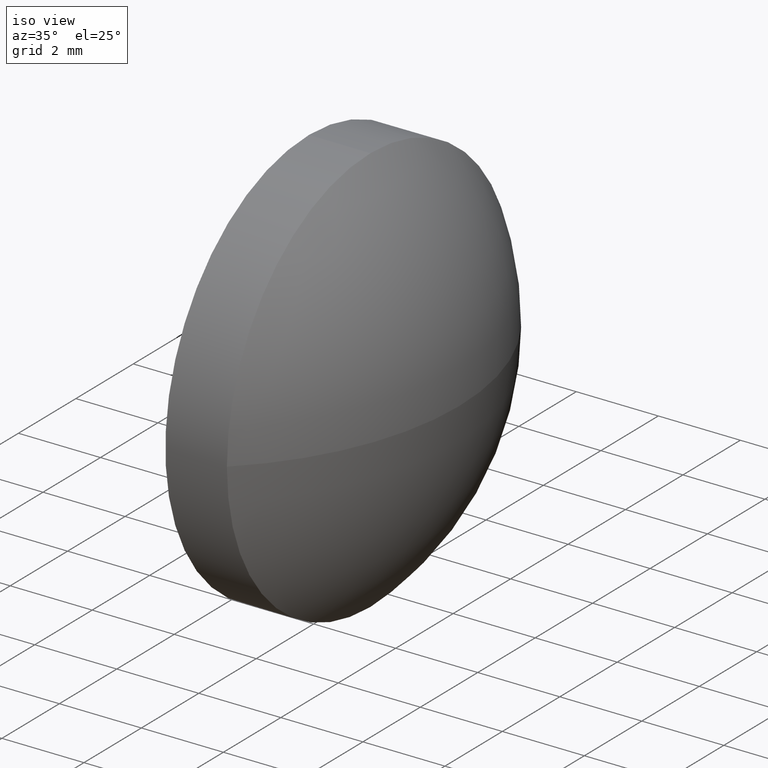
[diagram: clean part render]
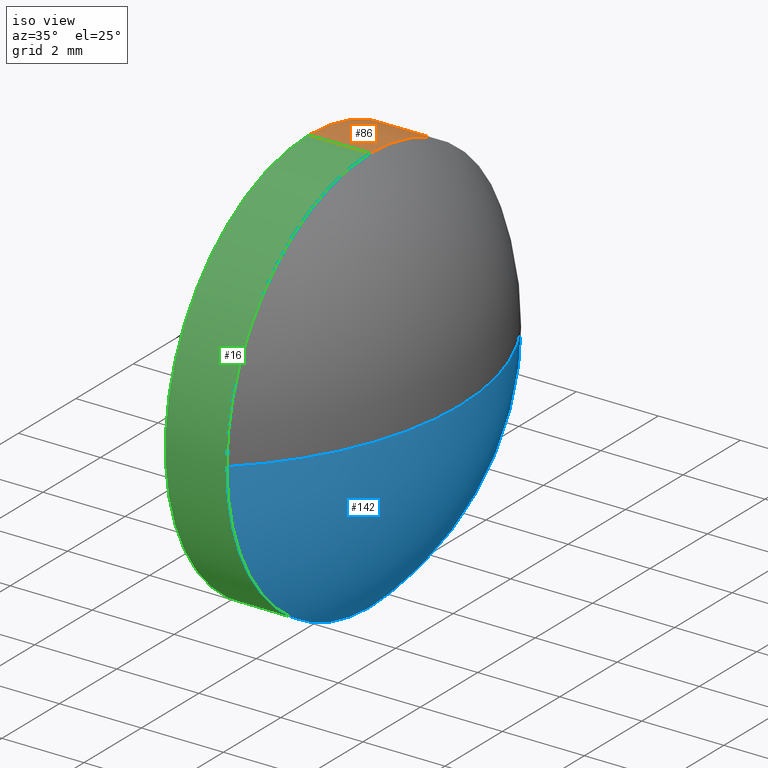
[diagram: same view with three faces highlighted in distinct colors, each labeled with its STEP entity id]
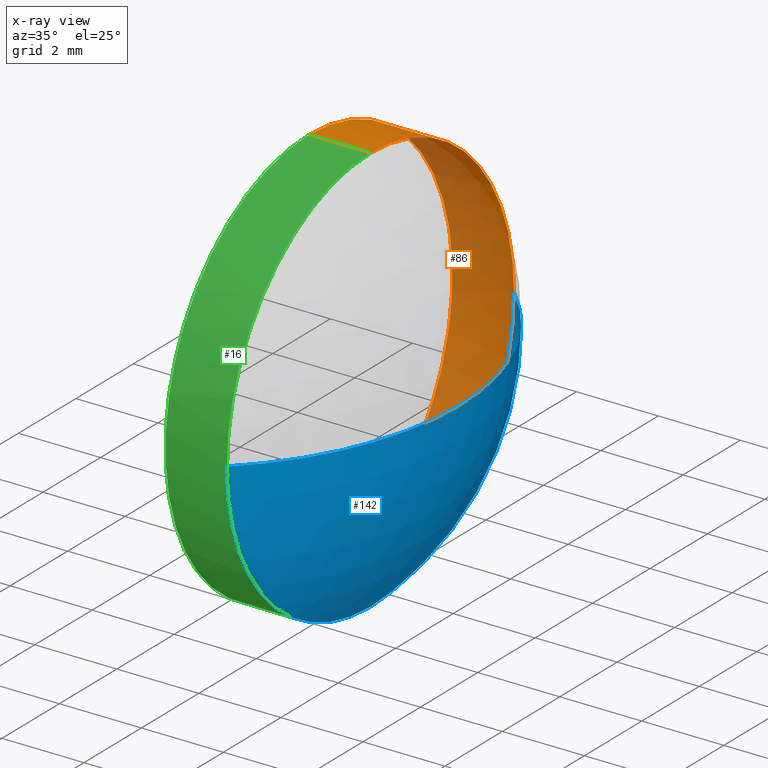
[diagram: x-ray of the same camera — body ghosted, the three highlighted faces saturated]
A machine part, iso view with three faces highlighted in distinct colors.
The next image is the same camera in x-ray (body ghosted, the three faces saturated) — at least one of them is partly hidden behind the body in this view.
Their STEP definitions:

[orange] entity #86 — the highlighted cylindrical surface (partial cylindrical patch) has radius 5 mm, axis along (-1, -0, -0).
#3 = FACE_OUTER_BOUND ( 'NONE', #119, .T. ) ;
#4 = AXIS2_PLACEMENT_3D ( 'NONE', #106, #11, #63 ) ;
#6 = CIRCLE ( 'NONE', #4, 5.000000000000004400 ) ;
#10 = CARTESIAN_POINT ( 'NONE',  ( 446.0946634505061200, 96.92527297599599500, 5.000000000000004400 ) ) ;
#11 = DIRECTION ( 'NONE',  ( -1.000000000000000000, -0.0000000000000000000, -0.0000000000000000000 ) ) ;
#12 = ORIENTED_EDGE ( 'NONE', *, *, #101, .T. ) ;
#19 = CARTESIAN_POINT ( 'NONE',  ( 447.2368931429505200, 96.92527297599599500, -5.000000000000004400 ) ) ;
#27 = DIRECTION ( 'NONE',  ( 0.0000000000000000000, 0.0000000000000000000, 1.000000000000000000 ) ) ;
#28 = DIRECTION ( 'NONE',  ( -1.000000000000000000, -0.0000000000000000000, -0.0000000000000000000 ) ) ;
#29 = VERTEX_POINT ( 'NONE', #131 ) ;
#31 = DIRECTION ( 'NONE',  ( -1.000000000000000000, -0.0000000000000000000, -0.0000000000000000000 ) ) ;
#40 = LINE ( 'NONE', #10, #169 ) ;
#41 = ORIENTED_EDGE ( 'NONE', *, *, #158, .T. ) ;
#44 = VERTEX_POINT ( 'NONE', #90 ) ;
#56 = VERTEX_POINT ( 'NONE', #89 ) ;
#58 = CARTESIAN_POINT ( 'NONE',  ( 447.2368931429505200, 96.92527297599599500, 0.0000000000000000000 ) ) ;
#63 = DIRECTION ( 'NONE',  ( 0.0000000000000000000, 0.0000000000000000000, 1.000000000000000000 ) ) ;
#69 = EDGE_CURVE ( 'NONE', #56, #44, #40, .T. ) ;
#74 = AXIS2_PLACEMENT_3D ( 'NONE', #58, #28, #27 ) ;
#76 = DIRECTION ( 'NONE',  ( -1.000000000000000000, -0.0000000000000000000, -0.0000000000000000000 ) ) ;
#81 = DIRECTION ( 'NONE',  ( -1.000000000000000000, -0.0000000000000000000, -0.0000000000000000000 ) ) ;
#83 = VERTEX_POINT ( 'NONE', #19 ) ;
#85 = ORIENTED_EDGE ( 'NONE', *, *, #132, .T. ) ;
#86 = ADVANCED_FACE ( 'NONE', ( #3 ), #152, .T. ) ;
#89 = CARTESIAN_POINT ( 'NONE',  ( 448.7368931429505200, 96.92527297599599500, 5.000000000000004400 ) ) ;
#90 = CARTESIAN_POINT ( 'NONE',  ( 447.2368931429505200, 96.92527297599599500, 5.000000000000004400 ) ) ;
#96 = CARTESIAN_POINT ( 'NONE',  ( 448.7368931429505200, 101.9252729759960100, 6.123233995736752500E-016 ) ) ;
#101 = EDGE_CURVE ( 'NONE', #56, #177, #6, .T. ) ;
#102 = CARTESIAN_POINT ( 'NONE',  ( 446.0946634505061200, 96.92527297599599500, -5.000000000000004400 ) ) ;
#104 = ORIENTED_EDGE ( 'NONE', *, *, #69, .F. ) ;
#106 = CARTESIAN_POINT ( 'NONE',  ( 448.7368931429505200, 96.92527297599599500, 0.0000000000000000000 ) ) ;
#107 = DIRECTION ( 'NONE',  ( 0.0000000000000000000, 0.0000000000000000000, 1.000000000000000000 ) ) ;
#109 = VECTOR ( 'NONE', #31, 1000.000000000000000 ) ;
#115 = CIRCLE ( 'NONE', #74, 5.000000000000004400 ) ;
#119 = EDGE_LOOP ( 'NONE', ( #41, #85, #167, #104, #12 ) ) ;
#120 = EDGE_CURVE ( 'NONE', #44, #83, #115, .T. ) ;
#122 = DIRECTION ( 'NONE',  ( -1.000000000000000000, -0.0000000000000000000, -0.0000000000000000000 ) ) ;
#124 = DIRECTION ( 'NONE',  ( 0.0000000000000000000, 0.0000000000000000000, 1.000000000000000000 ) ) ;
#131 = CARTESIAN_POINT ( 'NONE',  ( 448.7368931429505200, 96.92527297599599500, -5.000000000000004400 ) ) ;
#132 = EDGE_CURVE ( 'NONE', #29, #83, #156, .T. ) ;
#133 = CARTESIAN_POINT ( 'NONE',  ( 446.0946634505061200, 96.92527297599599500, 0.0000000000000000000 ) ) ;
#143 = AXIS2_PLACEMENT_3D ( 'NONE', #133, #122, #107 ) ;
#152 = CYLINDRICAL_SURFACE ( 'NONE', #143, 5.000000000000004400 ) ;
#156 = LINE ( 'NONE', #102, #109 ) ;
#158 = EDGE_CURVE ( 'NONE', #177, #29, #159, .T. ) ;
#159 = CIRCLE ( 'NONE', #174, 5.000000000000004400 ) ;
#167 = ORIENTED_EDGE ( 'NONE', *, *, #120, .F. ) ;
#169 = VECTOR ( 'NONE', #76, 1000.000000000000000 ) ;
#172 = CARTESIAN_POINT ( 'NONE',  ( 448.7368931429505200, 96.92527297599599500, 0.0000000000000000000 ) ) ;
#174 = AXIS2_PLACEMENT_3D ( 'NONE', #172, #81, #124 ) ;
#177 = VERTEX_POINT ( 'NONE', #96 ) ;

[blue] entity #142 — the highlighted spherical surface has radius 6.867 mm.
#9 = CARTESIAN_POINT ( 'NONE',  ( 444.0298561059135000, 96.92527297599600900, 0.0000000000000000000 ) ) ;
#29 = VERTEX_POINT ( 'NONE', #131 ) ;
#30 = FACE_OUTER_BOUND ( 'NONE', #51, .T. ) ;
#33 = AXIS2_PLACEMENT_3D ( 'NONE', #151, #47, #59 ) ;
#45 = DIRECTION ( 'NONE',  ( 0.0000000000000000000, 0.0000000000000000000, -1.000000000000000000 ) ) ;
#47 = DIRECTION ( 'NONE',  ( -1.000000000000000000, -0.0000000000000000000, -0.0000000000000000000 ) ) ;
#48 = DIRECTION ( 'NONE',  ( 0.0000000000000000000, 0.0000000000000000000, 1.000000000000000000 ) ) ;
#51 = EDGE_LOOP ( 'NONE', ( #92, #77, #148, #171 ) ) ;
#59 = DIRECTION ( 'NONE',  ( 0.0000000000000000000, 0.0000000000000000000, 1.000000000000000000 ) ) ;
#60 = CARTESIAN_POINT ( 'NONE',  ( 448.7368931429505200, 91.92527297599600900, 0.0000000000000000000 ) ) ;
#61 = EDGE_CURVE ( 'NONE', #126, #177, #162, .T. ) ;
#64 = AXIS2_PLACEMENT_3D ( 'NONE', #9, #45, #165 ) ;
#70 = CIRCLE ( 'NONE', #33, 5.000000000000004400 ) ;
#71 = AXIS2_PLACEMENT_3D ( 'NONE', #93, #134, #121 ) ;
#73 = EDGE_CURVE ( 'NONE', #126, #97, #127, .T. ) ;
#77 = ORIENTED_EDGE ( 'NONE', *, *, #73, .T. ) ;
#81 = DIRECTION ( 'NONE',  ( -1.000000000000000000, -0.0000000000000000000, -0.0000000000000000000 ) ) ;
#92 = ORIENTED_EDGE ( 'NONE', *, *, #61, .F. ) ;
#93 = CARTESIAN_POINT ( 'NONE',  ( 444.0298561059135000, 96.92527297599600900, 0.0000000000000000000 ) ) ;
#96 = CARTESIAN_POINT ( 'NONE',  ( 448.7368931429505200, 101.9252729759960100, 6.123233995736752500E-016 ) ) ;
#97 = VERTEX_POINT ( 'NONE', #60 ) ;
#118 = AXIS2_PLACEMENT_3D ( 'NONE', #141, #48, #138 ) ;
#121 = DIRECTION ( 'NONE',  ( 0.0000000000000000000, -1.000000000000000000, -1.224646799147353900E-016 ) ) ;
#124 = DIRECTION ( 'NONE',  ( 0.0000000000000000000, 0.0000000000000000000, 1.000000000000000000 ) ) ;
#126 = VERTEX_POINT ( 'NONE', #154 ) ;
#127 = CIRCLE ( 'NONE', #64, 6.867037037037004400 ) ;
#128 = EDGE_CURVE ( 'NONE', #29, #97, #70, .T. ) ;
#131 = CARTESIAN_POINT ( 'NONE',  ( 448.7368931429505200, 96.92527297599599500, -5.000000000000004400 ) ) ;
#134 = DIRECTION ( 'NONE',  ( 0.0000000000000000000, -1.224646799147353200E-016, 1.000000000000000000 ) ) ;
#138 = DIRECTION ( 'NONE',  ( 0.0000000000000000000, -1.000000000000000000, 0.0000000000000000000 ) ) ;
#141 = CARTESIAN_POINT ( 'NONE',  ( 444.0298561059135000, 96.92527297599600900, 0.0000000000000000000 ) ) ;
#142 = ADVANCED_FACE ( 'NONE', ( #30 ), #175, .T. ) ;
#148 = ORIENTED_EDGE ( 'NONE', *, *, #128, .F. ) ;
#151 = CARTESIAN_POINT ( 'NONE',  ( 448.7368931429505200, 96.92527297599599500, 0.0000000000000000000 ) ) ;
#154 = CARTESIAN_POINT ( 'NONE',  ( 450.8968931429504900, 96.92527297599600900, 0.0000000000000000000 ) ) ;
#158 = EDGE_CURVE ( 'NONE', #177, #29, #159, .T. ) ;
#159 = CIRCLE ( 'NONE', #174, 5.000000000000004400 ) ;
#162 = CIRCLE ( 'NONE', #71, 6.867037037037004400 ) ;
#165 = DIRECTION ( 'NONE',  ( -1.000000000000000000, 0.0000000000000000000, 0.0000000000000000000 ) ) ;
#171 = ORIENTED_EDGE ( 'NONE', *, *, #158, .F. ) ;
#172 = CARTESIAN_POINT ( 'NONE',  ( 448.7368931429505200, 96.92527297599599500, 0.0000000000000000000 ) ) ;
#174 = AXIS2_PLACEMENT_3D ( 'NONE', #172, #81, #124 ) ;
#175 = SPHERICAL_SURFACE ( 'NONE', #118, 6.867037037037008000 ) ;
#177 = VERTEX_POINT ( 'NONE', #96 ) ;

[green] entity #16 — the highlighted cylindrical surface (partial cylindrical patch) has radius 5 mm, axis along (-1, -0, -0).
#10 = CARTESIAN_POINT ( 'NONE',  ( 446.0946634505061200, 96.92527297599599500, 5.000000000000004400 ) ) ;
#15 = ORIENTED_EDGE ( 'NONE', *, *, #166, .F. ) ;
#16 = ADVANCED_FACE ( 'NONE', ( #66 ), #155, .T. ) ;
#19 = CARTESIAN_POINT ( 'NONE',  ( 447.2368931429505200, 96.92527297599599500, -5.000000000000004400 ) ) ;
#24 = AXIS2_PLACEMENT_3D ( 'NONE', #157, #95, #112 ) ;
#25 = DIRECTION ( 'NONE',  ( 0.0000000000000000000, 0.0000000000000000000, 1.000000000000000000 ) ) ;
#26 = ORIENTED_EDGE ( 'NONE', *, *, #147, .T. ) ;
#29 = VERTEX_POINT ( 'NONE', #131 ) ;
#31 = DIRECTION ( 'NONE',  ( -1.000000000000000000, -0.0000000000000000000, -0.0000000000000000000 ) ) ;
#33 = AXIS2_PLACEMENT_3D ( 'NONE', #151, #47, #59 ) ;
#37 = ORIENTED_EDGE ( 'NONE', *, *, #128, .T. ) ;
#39 = ORIENTED_EDGE ( 'NONE', *, *, #132, .F. ) ;
#40 = LINE ( 'NONE', #10, #169 ) ;
#44 = VERTEX_POINT ( 'NONE', #90 ) ;
#47 = DIRECTION ( 'NONE',  ( -1.000000000000000000, -0.0000000000000000000, -0.0000000000000000000 ) ) ;
#56 = VERTEX_POINT ( 'NONE', #89 ) ;
#59 = DIRECTION ( 'NONE',  ( 0.0000000000000000000, 0.0000000000000000000, 1.000000000000000000 ) ) ;
#60 = CARTESIAN_POINT ( 'NONE',  ( 448.7368931429505200, 91.92527297599600900, 0.0000000000000000000 ) ) ;
#66 = FACE_OUTER_BOUND ( 'NONE', #183, .T. ) ;
#69 = EDGE_CURVE ( 'NONE', #56, #44, #40, .T. ) ;
#70 = CIRCLE ( 'NONE', #33, 5.000000000000004400 ) ;
#75 = DIRECTION ( 'NONE',  ( -1.000000000000000000, -0.0000000000000000000, -0.0000000000000000000 ) ) ;
#76 = DIRECTION ( 'NONE',  ( -1.000000000000000000, -0.0000000000000000000, -0.0000000000000000000 ) ) ;
#83 = VERTEX_POINT ( 'NONE', #19 ) ;
#89 = CARTESIAN_POINT ( 'NONE',  ( 448.7368931429505200, 96.92527297599599500, 5.000000000000004400 ) ) ;
#90 = CARTESIAN_POINT ( 'NONE',  ( 447.2368931429505200, 96.92527297599599500, 5.000000000000004400 ) ) ;
#95 = DIRECTION ( 'NONE',  ( -1.000000000000000000, -0.0000000000000000000, -0.0000000000000000000 ) ) ;
#97 = VERTEX_POINT ( 'NONE', #60 ) ;
#98 = CARTESIAN_POINT ( 'NONE',  ( 447.2368931429505200, 96.92527297599599500, 0.0000000000000000000 ) ) ;
#99 = AXIS2_PLACEMENT_3D ( 'NONE', #98, #170, #181 ) ;
#102 = CARTESIAN_POINT ( 'NONE',  ( 446.0946634505061200, 96.92527297599599500, -5.000000000000004400 ) ) ;
#105 = CIRCLE ( 'NONE', #99, 5.000000000000004400 ) ;
#109 = VECTOR ( 'NONE', #31, 1000.000000000000000 ) ;
#112 = DIRECTION ( 'NONE',  ( 0.0000000000000000000, 0.0000000000000000000, 1.000000000000000000 ) ) ;
#128 = EDGE_CURVE ( 'NONE', #29, #97, #70, .T. ) ;
#129 = ORIENTED_EDGE ( 'NONE', *, *, #69, .T. ) ;
#131 = CARTESIAN_POINT ( 'NONE',  ( 448.7368931429505200, 96.92527297599599500, -5.000000000000004400 ) ) ;
#132 = EDGE_CURVE ( 'NONE', #29, #83, #156, .T. ) ;
#147 = EDGE_CURVE ( 'NONE', #97, #56, #184, .T. ) ;
#151 = CARTESIAN_POINT ( 'NONE',  ( 448.7368931429505200, 96.92527297599599500, 0.0000000000000000000 ) ) ;
#155 = CYLINDRICAL_SURFACE ( 'NONE', #160, 5.000000000000004400 ) ;
#156 = LINE ( 'NONE', #102, #109 ) ;
#157 = CARTESIAN_POINT ( 'NONE',  ( 448.7368931429505200, 96.92527297599599500, 0.0000000000000000000 ) ) ;
#160 = AXIS2_PLACEMENT_3D ( 'NONE', #163, #75, #25 ) ;
#163 = CARTESIAN_POINT ( 'NONE',  ( 446.0946634505061200, 96.92527297599599500, 0.0000000000000000000 ) ) ;
#166 = EDGE_CURVE ( 'NONE', #83, #44, #105, .T. ) ;
#169 = VECTOR ( 'NONE', #76, 1000.000000000000000 ) ;
#170 = DIRECTION ( 'NONE',  ( -1.000000000000000000, -0.0000000000000000000, -0.0000000000000000000 ) ) ;
#181 = DIRECTION ( 'NONE',  ( 0.0000000000000000000, 0.0000000000000000000, 1.000000000000000000 ) ) ;
#183 = EDGE_LOOP ( 'NONE', ( #39, #37, #26, #129, #15 ) ) ;
#184 = CIRCLE ( 'NONE', #24, 5.000000000000004400 ) ;